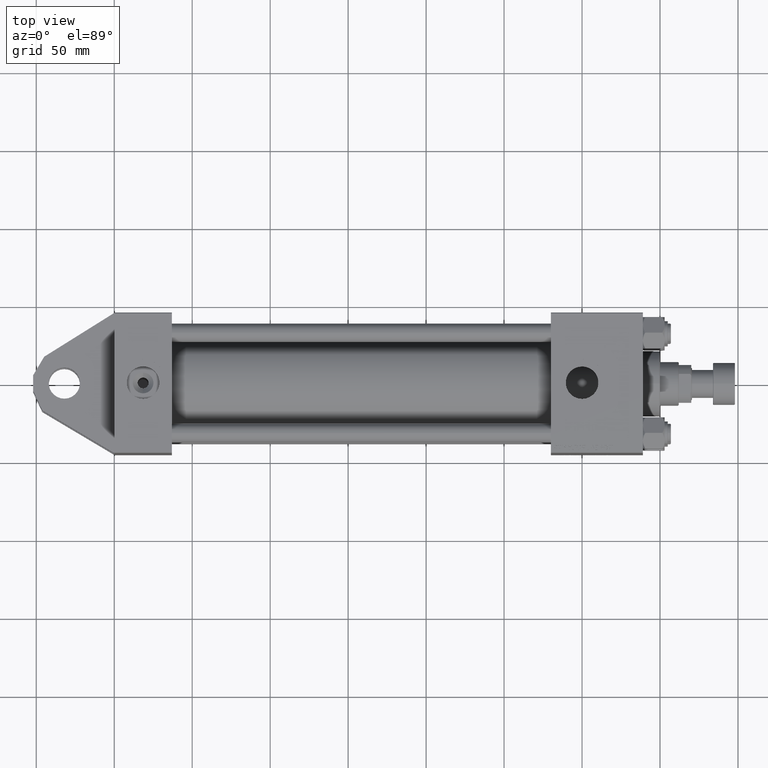
[diagram: clean part render]
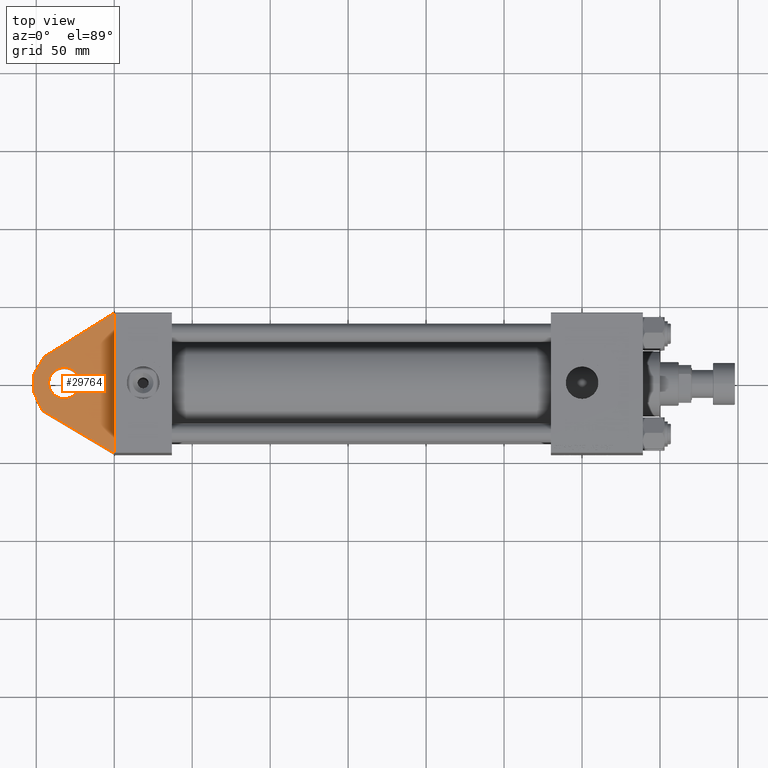
[diagram: same view with one face highlighted and labeled with its STEP entity id]
A machine part, top view. The second image highlights one B-rep face of the part: STEP entity #29764.
In plain terms, the highlighted planar face has unit normal (0, 0, 1).
Its self-contained STEP definition (entity closure, byte-faithful):
#298 = EDGE_LOOP ( 'NONE', ( #25034, #49245 ) ) ;
#3008 = CARTESIAN_POINT ( 'NONE',  ( -32.00000000000000000, -30.00000000000000000, 0.000000000000000000 ) ) ;
#3546 = CARTESIAN_POINT ( 'NONE',  ( 0.000000000000000000, -30.00000000000000000, 0.000000000000000000 ) ) ;
#5010 = VECTOR ( 'NONE', #25767, 1000.000000000000000 ) ;
#6613 = CARTESIAN_POINT ( 'NONE',  ( -52.00000000000000711, -30.00000000000000000, -5.000000000000000000 ) ) ;
#6683 = AXIS2_PLACEMENT_3D ( 'NONE', #30704, #46848, #9016 ) ;
#9016 = DIRECTION ( 'NONE',  ( 0.000000000000000000, 0.000000000000000000, 1.000000000000000000 ) ) ;
#11124 = ORIENTED_EDGE ( 'NONE', *, *, #19951, .F. ) ;
#11396 = CARTESIAN_POINT ( 'NONE',  ( -44.91602078046192048, -30.00000000000000000, 16.91288539427591431 ) ) ;
#12394 = DIRECTION ( 'NONE',  ( 0.8478744008358545248, 0.000000000000000000, 0.5301971335335947666 ) ) ;
#13335 = CIRCLE ( 'NONE', #28465, 10.00000000000000000 ) ;
#13601 = FACE_OUTER_BOUND ( 'NONE', #30078, .T. ) ;
#13903 = VECTOR ( 'NONE', #37800, 1000.000000000000227 ) ;
#14555 = LINE ( 'NONE', #6613, #13903 ) ;
#14735 = CARTESIAN_POINT ( 'NONE',  ( -46.14251089227400371, -30.00000000000000000, -17.56142592832800631 ) ) ;
#15535 = EDGE_CURVE ( 'NONE', #27542, #41374, #18500, .T. ) ;
#17488 = ORIENTED_EDGE ( 'NONE', *, *, #33215, .F. ) ;
#18500 = CIRCLE ( 'NONE', #6683, 10.00000000000000000 ) ;
#19105 = LINE ( 'NONE', #44189, #24372 ) ;
#19126 = DIRECTION ( 'NONE',  ( -0.000000000000000000, 1.000000000000000000, -0.000000000000000000 ) ) ;
#19588 = EDGE_CURVE ( 'NONE', #37848, #40447, #19105, .T. ) ;
#19951 = EDGE_CURVE ( 'NONE', #35993, #29729, #45625, .T. ) ;
#22067 = VERTEX_POINT ( 'NONE', #14735 ) ;
#22562 = CARTESIAN_POINT ( 'NONE',  ( 0.000000000000000000, -30.00000000000000000, -45.00000000000000000 ) ) ;
#23452 = ORIENTED_EDGE ( 'NONE', *, *, #38364, .F. ) ;
#23971 = CARTESIAN_POINT ( 'NONE',  ( 0.000000000000000000, -29.99999999999997158, 45.00000000000000000 ) ) ;
#24372 = VECTOR ( 'NONE', #27007, 1000.000000000000000 ) ;
#25034 = ORIENTED_EDGE ( 'NONE', *, *, #15535, .T. ) ;
#25767 = DIRECTION ( 'NONE',  ( 0.000000000000000000, 0.000000000000000000, -1.000000000000000000 ) ) ;
#25991 = PLANE ( 'NONE',  #30565 ) ;
#27007 = DIRECTION ( 'NONE',  ( 0.000000000000000000, 0.000000000000000000, 1.000000000000000000 ) ) ;
#27542 = VERTEX_POINT ( 'NONE', #38735 ) ;
#27558 = DIRECTION ( 'NONE',  ( 0.000000000000000000, -1.000000000000000000, 0.000000000000000000 ) ) ;
#28465 = AXIS2_PLACEMENT_3D ( 'NONE', #3008, #19126, #51373 ) ;
#29342 = CARTESIAN_POINT ( 'NONE',  ( -52.00000000000000711, -30.00000000000000000, 5.000000000000000000 ) ) ;
#29729 = VERTEX_POINT ( 'NONE', #22562 ) ;
#29764 = ADVANCED_FACE ( 'NONE', ( #37639, #13601 ), #25991, .T. ) ;
#30078 = EDGE_LOOP ( 'NONE', ( #50569, #46226, #32186, #17488, #11124, #23452 ) ) ;
#30565 = AXIS2_PLACEMENT_3D ( 'NONE', #3546, #27558, #47936 ) ;
#30704 = CARTESIAN_POINT ( 'NONE',  ( -32.00000000000000000, -30.00000000000000000, 0.000000000000000000 ) ) ;
#32186 = ORIENTED_EDGE ( 'NONE', *, *, #38204, .F. ) ;
#33215 = EDGE_CURVE ( 'NONE', #29729, #22067, #34427, .T. ) ;
#33243 = VECTOR ( 'NONE', #42892, 999.9999999999998863 ) ;
#33775 = CARTESIAN_POINT ( 'NONE',  ( -32.00000000000000000, -30.00000000000000000, -10.00000000000000000 ) ) ;
#34148 = VECTOR ( 'NONE', #41256, 999.9999999999998863 ) ;
#34427 = LINE ( 'NONE', #51087, #33243 ) ;
#34542 = EDGE_CURVE ( 'NONE', #40447, #46842, #40482, .T. ) ;
#35993 = VERTEX_POINT ( 'NONE', #23971 ) ;
#36688 = LINE ( 'NONE', #40664, #47677 ) ;
#37398 = CARTESIAN_POINT ( 'NONE',  ( -52.00000000000000711, -30.00000000000000000, -5.000000000000000000 ) ) ;
#37639 = FACE_BOUND ( 'NONE', #298, .T. ) ;
#37800 = DIRECTION ( 'NONE',  ( -0.4226182617406930020, 0.000000000000000000, 0.9063077870366529343 ) ) ;
#37848 = VERTEX_POINT ( 'NONE', #37398 ) ;
#38204 = EDGE_CURVE ( 'NONE', #22067, #37848, #14555, .T. ) ;
#38364 = EDGE_CURVE ( 'NONE', #46842, #35993, #36688, .T. ) ;
#38735 = CARTESIAN_POINT ( 'NONE',  ( -32.00000000000000000, -30.00000000000000000, 10.00000000000000000 ) ) ;
#40447 = VERTEX_POINT ( 'NONE', #49303 ) ;
#40482 = LINE ( 'NONE', #29342, #34148 ) ;
#40664 = CARTESIAN_POINT ( 'NONE',  ( -44.91602078046192048, -30.00000000000000000, 16.91288539427591431 ) ) ;
#41256 = DIRECTION ( 'NONE',  ( 0.5111096117992851573, 0.000000000000000000, 0.8595155407125482094 ) ) ;
#41374 = VERTEX_POINT ( 'NONE', #33775 ) ;
#42892 = DIRECTION ( 'NONE',  ( -0.8595155407125480984, 0.000000000000000000, 0.5111096117992853793 ) ) ;
#44189 = CARTESIAN_POINT ( 'NONE',  ( -52.00000000000000711, -30.00000000000000000, -5.000000000000000000 ) ) ;
#45625 = LINE ( 'NONE', #49850, #5010 ) ;
#45712 = EDGE_CURVE ( 'NONE', #41374, #27542, #13335, .T. ) ;
#46226 = ORIENTED_EDGE ( 'NONE', *, *, #19588, .F. ) ;
#46842 = VERTEX_POINT ( 'NONE', #11396 ) ;
#46848 = DIRECTION ( 'NONE',  ( -0.000000000000000000, 1.000000000000000000, -0.000000000000000000 ) ) ;
#47677 = VECTOR ( 'NONE', #12394, 1000.000000000000114 ) ;
#47936 = DIRECTION ( 'NONE',  ( 0.000000000000000000, 0.000000000000000000, 1.000000000000000000 ) ) ;
#49245 = ORIENTED_EDGE ( 'NONE', *, *, #45712, .T. ) ;
#49303 = CARTESIAN_POINT ( 'NONE',  ( -52.00000000000000711, -30.00000000000000000, 5.000000000000000000 ) ) ;
#49850 = CARTESIAN_POINT ( 'NONE',  ( 0.000000000000000000, -30.00000000000000000, 45.00000000000000000 ) ) ;
#50569 = ORIENTED_EDGE ( 'NONE', *, *, #34542, .F. ) ;
#51087 = CARTESIAN_POINT ( 'NONE',  ( -46.14251089227400371, -30.00000000000000000, -17.56142592832800631 ) ) ;
#51373 = DIRECTION ( 'NONE',  ( 0.000000000000000000, 0.000000000000000000, 1.000000000000000000 ) ) ;